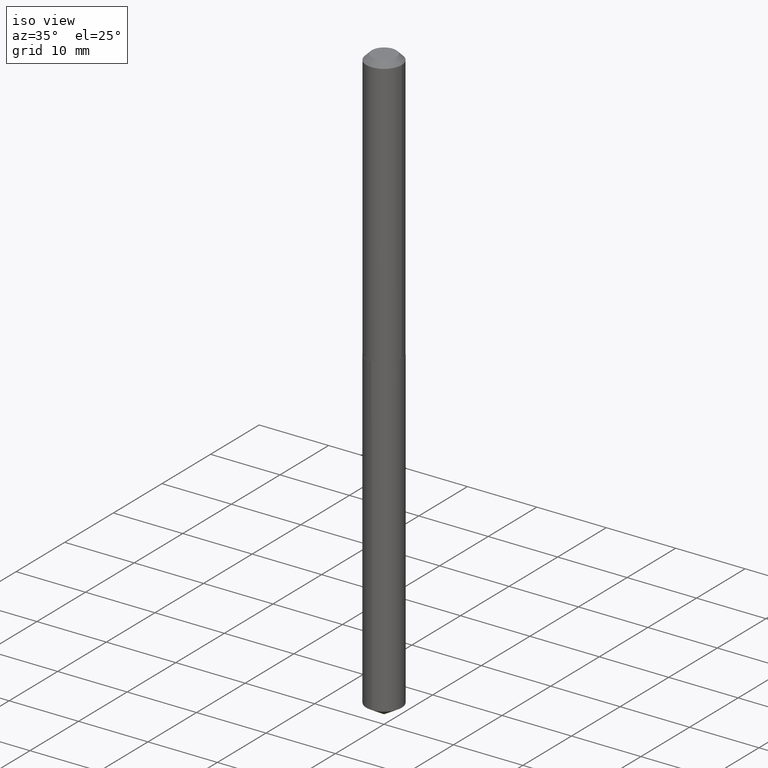
[diagram: clean part render]
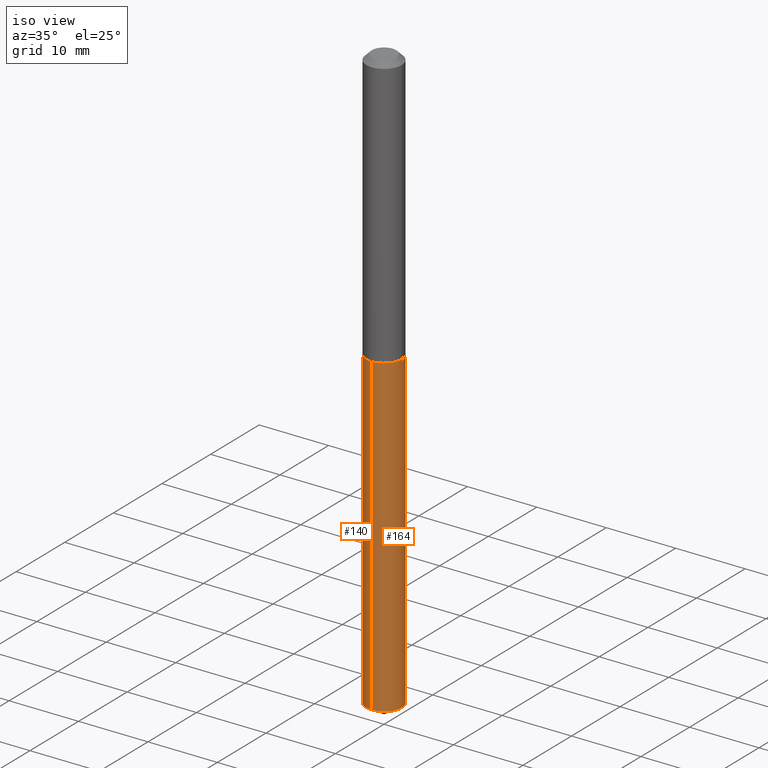
[diagram: same view with one multi-face feature highlighted, each face labeled with its STEP entity id]
A machine part, iso view. The highlighted faces form ONE feature: a constant-radius fillet chain: 2 tangent blend faces with common blend radius 2.5502 mm. The faces share edges in the B-rep.
Their STEP definitions:
[1] entity #164 (Cylinder):
#2 = FACE_OUTER_BOUND ( 'NONE', #366, .T. ) ;
#7 = ORIENTED_EDGE ( 'NONE', *, *, #261, .T. ) ;
#12 = CIRCLE ( 'NONE', #70, 0.1004000000000000031 ) ;
#33 = ORIENTED_EDGE ( 'NONE', *, *, #372, .F. ) ;
#52 = DIRECTION ( 'NONE',  ( -2.445422507803633721E-29, 3.491547640760597732E-15, 1.000000000000000000 ) ) ;
#58 = EDGE_CURVE ( 'NONE', #194, #133, #12, .T. ) ;
#63 = CARTESIAN_POINT ( 'NONE',  ( -7.010894528396636059E-16, -0.1004000000000053877, -1.539399999999999880 ) ) ;
#70 = AXIS2_PLACEMENT_3D ( 'NONE', #324, #355, #349 ) ;
#71 = VECTOR ( 'NONE', #191, 39.37007874015748143 ) ;
#80 = EDGE_CURVE ( 'NONE', #343, #351, #112, .T. ) ;
#83 = LINE ( 'NONE', #331, #309 ) ;
#84 = DIRECTION ( 'NONE',  ( -2.445422507803633721E-29, 3.491547640760597732E-15, 1.000000000000000000 ) ) ;
#87 = AXIS2_PLACEMENT_3D ( 'NONE', #356, #84, #300 ) ;
#101 = ORIENTED_EDGE ( 'NONE', *, *, #58, .F. ) ;
#112 = CIRCLE ( 'NONE', #235, 0.1004000000000000031 ) ;
#119 = CARTESIAN_POINT ( 'NONE',  ( -7.010894528396636059E-16, -0.1004000000000053877, -1.539399999999999880 ) ) ;
#133 = VERTEX_POINT ( 'NONE', #272 ) ;
#163 = CARTESIAN_POINT ( 'NONE',  ( -7.010894528396199227E-16, -0.1004000000000116188, -3.325473593849633591 ) ) ;
#164 = ADVANCED_FACE ( 'NONE', ( #2 ), #213, .T. ) ;
#191 = DIRECTION ( 'NONE',  ( -2.445422507803633721E-29, 3.491547640760597732E-15, 1.000000000000000000 ) ) ;
#194 = VERTEX_POINT ( 'NONE', #119 ) ;
#213 = CYLINDRICAL_SURFACE ( 'NONE', #87, 0.1004000000000000031 ) ;
#229 = CARTESIAN_POINT ( 'NONE',  ( 8.132259247235019686E-29, -1.161094741584563161E-14, -3.325473593849634035 ) ) ;
#235 = AXIS2_PLACEMENT_3D ( 'NONE', #229, #52, #291 ) ;
#261 = EDGE_CURVE ( 'NONE', #351, #133, #83, .T. ) ;
#272 = CARTESIAN_POINT ( 'NONE',  ( 7.133849067032221574E-16, 0.1003999999999946324, -1.539400000000000546 ) ) ;
#279 = LINE ( 'NONE', #63, #71 ) ;
#291 = DIRECTION ( 'NONE',  ( -6.982962677686266711E-15, -1.000000000000000000, 5.441928274231599754E-15 ) ) ;
#298 = DIRECTION ( 'NONE',  ( -2.445422507803633721E-29, 3.491547640760597732E-15, 1.000000000000000000 ) ) ;
#300 = DIRECTION ( 'NONE',  ( -6.982962677686266711E-15, -1.000000000000000000, 2.720964137115799877E-15 ) ) ;
#309 = VECTOR ( 'NONE', #298, 39.37007874015748143 ) ;
#319 = ORIENTED_EDGE ( 'NONE', *, *, #80, .T. ) ;
#324 = CARTESIAN_POINT ( 'NONE',  ( 3.764554680241400051E-29, -5.374786373015138969E-15, -1.539400000000000324 ) ) ;
#331 = CARTESIAN_POINT ( 'NONE',  ( 7.133849067031780798E-16, 0.1003999999999946324, -1.539400000000000546 ) ) ;
#343 = VERTEX_POINT ( 'NONE', #163 ) ;
#349 = DIRECTION ( 'NONE',  ( -6.982962677686266711E-15, -1.000000000000000000, 2.720964137115799877E-15 ) ) ;
#351 = VERTEX_POINT ( 'NONE', #373 ) ;
#355 = DIRECTION ( 'NONE',  ( -2.445422507803633721E-29, 3.491547640760597732E-15, 1.000000000000000000 ) ) ;
#356 = CARTESIAN_POINT ( 'NONE',  ( 3.764554680241400051E-29, -5.374786373015138969E-15, -1.539400000000000324 ) ) ;
#366 = EDGE_LOOP ( 'NONE', ( #319, #7, #101, #33 ) ) ;
#372 = EDGE_CURVE ( 'NONE', #343, #194, #279, .T. ) ;
#373 = CARTESIAN_POINT ( 'NONE',  ( 7.133849067032217629E-16, 0.1003999999999884013, -3.325473593849634923 ) ) ;
[2] entity #140 (Cylinder):
#42 = ORIENTED_EDGE ( 'NONE', *, *, #389, .T. ) ;
#53 = CYLINDRICAL_SURFACE ( 'NONE', #131, 0.1004000000000000031 ) ;
#55 = CIRCLE ( 'NONE', #316, 0.1004000000000000031 ) ;
#63 = CARTESIAN_POINT ( 'NONE',  ( -7.010894528396636059E-16, -0.1004000000000053877, -1.539399999999999880 ) ) ;
#68 = DIRECTION ( 'NONE',  ( -2.445422507803633721E-29, 3.491547640760597732E-15, 1.000000000000000000 ) ) ;
#71 = VECTOR ( 'NONE', #191, 39.37007874015748143 ) ;
#83 = LINE ( 'NONE', #331, #309 ) ;
#89 = ORIENTED_EDGE ( 'NONE', *, *, #261, .F. ) ;
#99 = ORIENTED_EDGE ( 'NONE', *, *, #372, .T. ) ;
#117 = DIRECTION ( 'NONE',  ( -2.445422507803633721E-29, 3.491547640760597732E-15, 1.000000000000000000 ) ) ;
#119 = CARTESIAN_POINT ( 'NONE',  ( -7.010894528396636059E-16, -0.1004000000000053877, -1.539399999999999880 ) ) ;
#130 = EDGE_LOOP ( 'NONE', ( #89, #42, #99, #286 ) ) ;
#131 = AXIS2_PLACEMENT_3D ( 'NONE', #237, #117, #387 ) ;
#132 = CARTESIAN_POINT ( 'NONE',  ( 8.132259247235019686E-29, -1.161094741584563161E-14, -3.325473593849634035 ) ) ;
#133 = VERTEX_POINT ( 'NONE', #272 ) ;
#140 = ADVANCED_FACE ( 'NONE', ( #267 ), #53, .T. ) ;
#161 = CARTESIAN_POINT ( 'NONE',  ( 3.764554680241400051E-29, -5.374786373015138969E-15, -1.539400000000000324 ) ) ;
#163 = CARTESIAN_POINT ( 'NONE',  ( -7.010894528396199227E-16, -0.1004000000000116188, -3.325473593849633591 ) ) ;
#191 = DIRECTION ( 'NONE',  ( -2.445422507803633721E-29, 3.491547640760597732E-15, 1.000000000000000000 ) ) ;
#194 = VERTEX_POINT ( 'NONE', #119 ) ;
#219 = DIRECTION ( 'NONE',  ( -6.982962677686266711E-15, -1.000000000000000000, 5.441928274231599754E-15 ) ) ;
#237 = CARTESIAN_POINT ( 'NONE',  ( 3.764554680241400051E-29, -5.374786373015138969E-15, -1.539400000000000324 ) ) ;
#261 = EDGE_CURVE ( 'NONE', #351, #133, #83, .T. ) ;
#267 = FACE_OUTER_BOUND ( 'NONE', #130, .T. ) ;
#272 = CARTESIAN_POINT ( 'NONE',  ( 7.133849067032221574E-16, 0.1003999999999946324, -1.539400000000000546 ) ) ;
#279 = LINE ( 'NONE', #63, #71 ) ;
#286 = ORIENTED_EDGE ( 'NONE', *, *, #320, .F. ) ;
#298 = DIRECTION ( 'NONE',  ( -2.445422507803633721E-29, 3.491547640760597732E-15, 1.000000000000000000 ) ) ;
#309 = VECTOR ( 'NONE', #298, 39.37007874015748143 ) ;
#316 = AXIS2_PLACEMENT_3D ( 'NONE', #132, #68, #219 ) ;
#320 = EDGE_CURVE ( 'NONE', #133, #194, #328, .T. ) ;
#328 = CIRCLE ( 'NONE', #354, 0.1004000000000000031 ) ;
#331 = CARTESIAN_POINT ( 'NONE',  ( 7.133849067031780798E-16, 0.1003999999999946324, -1.539400000000000546 ) ) ;
#334 = DIRECTION ( 'NONE',  ( -2.445422507803633721E-29, 3.491547640760597732E-15, 1.000000000000000000 ) ) ;
#343 = VERTEX_POINT ( 'NONE', #163 ) ;
#351 = VERTEX_POINT ( 'NONE', #373 ) ;
#354 = AXIS2_PLACEMENT_3D ( 'NONE', #161, #334, #367 ) ;
#367 = DIRECTION ( 'NONE',  ( -6.982962677686266711E-15, -1.000000000000000000, 2.720964137115799877E-15 ) ) ;
#372 = EDGE_CURVE ( 'NONE', #343, #194, #279, .T. ) ;
#373 = CARTESIAN_POINT ( 'NONE',  ( 7.133849067032217629E-16, 0.1003999999999884013, -3.325473593849634923 ) ) ;
#387 = DIRECTION ( 'NONE',  ( -6.982962677686266711E-15, -1.000000000000000000, 2.720964137115799877E-15 ) ) ;
#389 = EDGE_CURVE ( 'NONE', #351, #343, #55, .T. ) ;